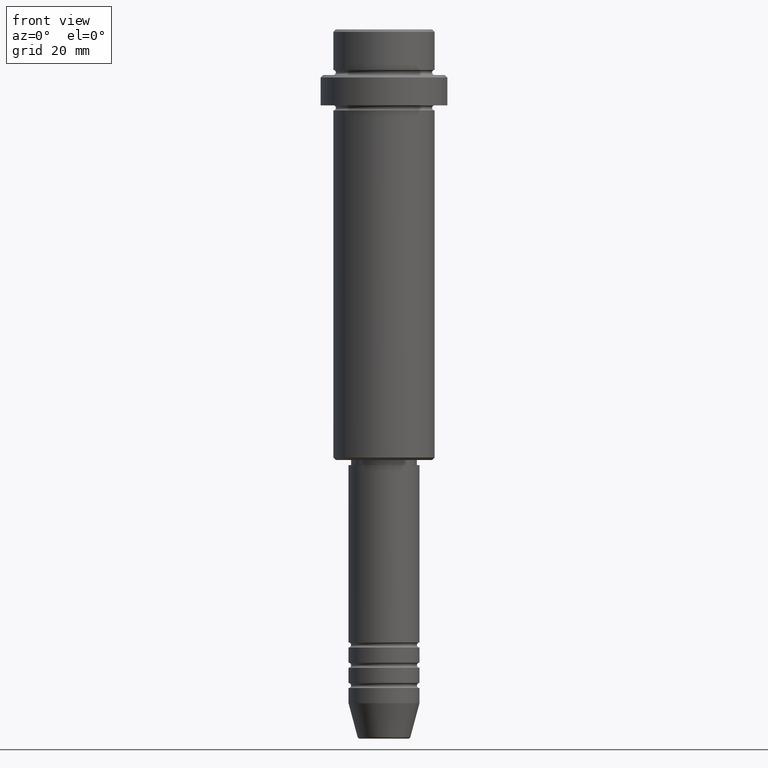
[diagram: clean part render]
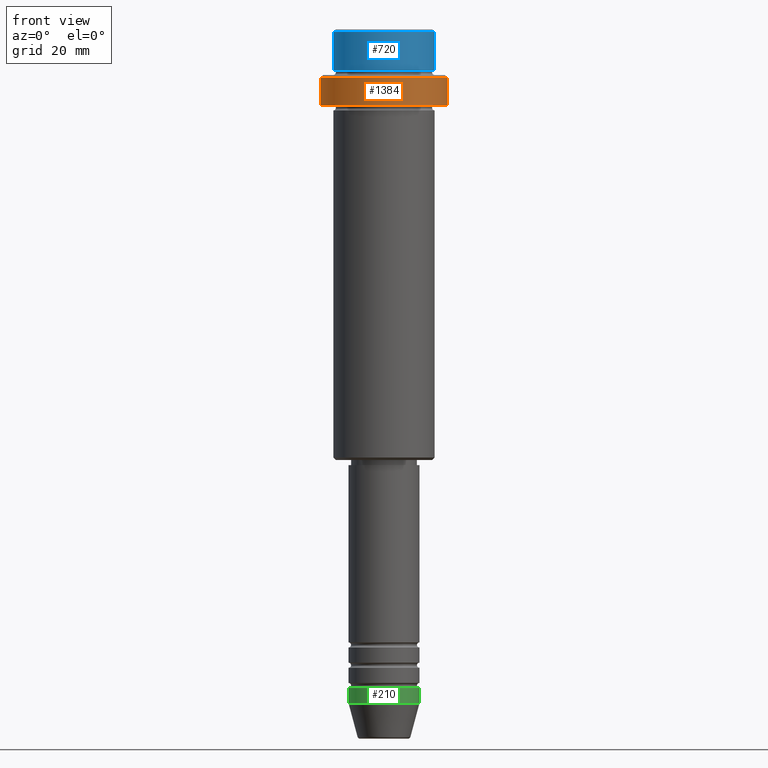
[diagram: same view with three faces highlighted in distinct colors, each labeled with its STEP entity id]
A machine part, front view with three faces highlighted in distinct colors.
Their STEP definitions:

[orange] entity #1384 — the highlighted cylindrical surface (partial cylindrical patch) has radius 12.5 mm, axis along (-0, -0, 1).
#19 = DIRECTION ( 'NONE',  ( -0.000000000000000000, -0.000000000000000000, 1.000000000000000000 ) ) ;
#30 = EDGE_CURVE ( 'NONE', #416, #1037, #693, .T. ) ;
#56 = EDGE_CURVE ( 'NONE', #314, #565, #536, .T. ) ;
#135 = DIRECTION ( 'NONE',  ( -0.000000000000000000, -0.000000000000000000, 1.000000000000000000 ) ) ;
#145 = EDGE_CURVE ( 'NONE', #314, #1037, #582, .T. ) ;
#215 = DIRECTION ( 'NONE',  ( 1.000000000000000000, 0.000000000000000000, 0.000000000000000000 ) ) ;
#235 = LINE ( 'NONE', #1333, #445 ) ;
#314 = VERTEX_POINT ( 'NONE', #1162 ) ;
#416 = VERTEX_POINT ( 'NONE', #1329 ) ;
#444 = ORIENTED_EDGE ( 'NONE', *, *, #145, .F. ) ;
#445 = VECTOR ( 'NONE', #661, 1000.000000000000000 ) ;
#536 = CIRCLE ( 'NONE', #1342, 12.50000000000000000 ) ;
#565 = VERTEX_POINT ( 'NONE', #1387 ) ;
#582 = LINE ( 'NONE', #907, #1036 ) ;
#612 = CARTESIAN_POINT ( 'NONE',  ( -12.50000000000000000, 1.530808498934191521E-15, -9.500000000000031974 ) ) ;
#661 = DIRECTION ( 'NONE',  ( -0.000000000000000000, -0.000000000000000000, 1.000000000000000000 ) ) ;
#693 = CIRCLE ( 'NONE', #879, 12.50000000000000000 ) ;
#746 = DIRECTION ( 'NONE',  ( 1.000000000000000000, 0.000000000000000000, 0.000000000000000000 ) ) ;
#749 = ORIENTED_EDGE ( 'NONE', *, *, #56, .T. ) ;
#765 = CARTESIAN_POINT ( 'NONE',  ( 0.000000000000000000, 0.000000000000000000, 0.000000000000000000 ) ) ;
#861 = CARTESIAN_POINT ( 'NONE',  ( 0.000000000000000000, 0.000000000000000000, -9.500000000000031974 ) ) ;
#863 = EDGE_LOOP ( 'NONE', ( #444, #749, #931, #1094 ) ) ;
#879 = AXIS2_PLACEMENT_3D ( 'NONE', #861, #1304, #215 ) ;
#907 = CARTESIAN_POINT ( 'NONE',  ( -12.50000000000000000, 1.530808498934191521E-15, 0.000000000000000000 ) ) ;
#931 = ORIENTED_EDGE ( 'NONE', *, *, #932, .T. ) ;
#932 = EDGE_CURVE ( 'NONE', #565, #416, #235, .T. ) ;
#964 = CARTESIAN_POINT ( 'NONE',  ( 0.000000000000000000, 0.000000000000000000, -15.00000000000000000 ) ) ;
#998 = AXIS2_PLACEMENT_3D ( 'NONE', #765, #19, #1330 ) ;
#1036 = VECTOR ( 'NONE', #135, 1000.000000000000000 ) ;
#1037 = VERTEX_POINT ( 'NONE', #612 ) ;
#1094 = ORIENTED_EDGE ( 'NONE', *, *, #30, .T. ) ;
#1097 = DIRECTION ( 'NONE',  ( -0.000000000000000000, -0.000000000000000000, 1.000000000000000000 ) ) ;
#1118 = CYLINDRICAL_SURFACE ( 'NONE', #998, 12.50000000000000000 ) ;
#1162 = CARTESIAN_POINT ( 'NONE',  ( -12.50000000000000000, 1.530808498934191521E-15, -15.00000000000000000 ) ) ;
#1231 = FACE_OUTER_BOUND ( 'NONE', #863, .T. ) ;
#1304 = DIRECTION ( 'NONE',  ( 0.000000000000000000, 0.000000000000000000, -1.000000000000000000 ) ) ;
#1329 = CARTESIAN_POINT ( 'NONE',  ( 12.50000000000000000, 0.000000000000000000, -9.500000000000031974 ) ) ;
#1330 = DIRECTION ( 'NONE',  ( 1.000000000000000000, 0.000000000000000000, 0.000000000000000000 ) ) ;
#1333 = CARTESIAN_POINT ( 'NONE',  ( 12.50000000000000000, 0.000000000000000000, 0.000000000000000000 ) ) ;
#1342 = AXIS2_PLACEMENT_3D ( 'NONE', #964, #1097, #746 ) ;
#1384 = ADVANCED_FACE ( 'NONE', ( #1231 ), #1118, .T. ) ;
#1387 = CARTESIAN_POINT ( 'NONE',  ( 12.50000000000000000, 0.000000000000000000, -15.00000000000000000 ) ) ;

[blue] entity #720 — the highlighted cylindrical surface (partial cylindrical patch) has radius 10 mm, axis along (-0, -0, 1).
#2 = FACE_OUTER_BOUND ( 'NONE', #647, .T. ) ;
#21 = DIRECTION ( 'NONE',  ( 1.000000000000000000, 0.000000000000000000, 0.000000000000000000 ) ) ;
#104 = EDGE_CURVE ( 'NONE', #305, #902, #628, .T. ) ;
#124 = DIRECTION ( 'NONE',  ( 0.000000000000000000, 0.000000000000000000, -1.000000000000000000 ) ) ;
#147 = CARTESIAN_POINT ( 'NONE',  ( 9.999999999999998224, 0.000000000000000000, 0.000000000000000000 ) ) ;
#154 = EDGE_CURVE ( 'NONE', #196, #305, #475, .T. ) ;
#196 = VERTEX_POINT ( 'NONE', #800 ) ;
#263 = DIRECTION ( 'NONE',  ( -0.000000000000000000, -0.000000000000000000, 1.000000000000000000 ) ) ;
#305 = VERTEX_POINT ( 'NONE', #813 ) ;
#442 = CARTESIAN_POINT ( 'NONE',  ( -9.999999999999998224, 1.224646799147353059E-15, 0.000000000000000000 ) ) ;
#475 = LINE ( 'NONE', #147, #808 ) ;
#508 = VERTEX_POINT ( 'NONE', #895 ) ;
#528 = LINE ( 'NONE', #442, #758 ) ;
#533 = CARTESIAN_POINT ( 'NONE',  ( 0.000000000000000000, 0.000000000000000000, -0.4999999999999970024 ) ) ;
#628 = CIRCLE ( 'NONE', #1415, 9.999999999999998224 ) ;
#635 = DIRECTION ( 'NONE',  ( 1.000000000000000000, 0.000000000000000000, 0.000000000000000000 ) ) ;
#647 = EDGE_LOOP ( 'NONE', ( #1352, #1346, #1028, #938 ) ) ;
#671 = AXIS2_PLACEMENT_3D ( 'NONE', #1105, #263, #772 ) ;
#695 = EDGE_CURVE ( 'NONE', #508, #902, #528, .T. ) ;
#720 = ADVANCED_FACE ( 'NONE', ( #2 ), #731, .T. ) ;
#731 = CYLINDRICAL_SURFACE ( 'NONE', #1041, 9.999999999999998224 ) ;
#758 = VECTOR ( 'NONE', #1305, 1000.000000000000000 ) ;
#772 = DIRECTION ( 'NONE',  ( 1.000000000000000000, 0.000000000000000000, 0.000000000000000000 ) ) ;
#800 = CARTESIAN_POINT ( 'NONE',  ( 9.999999999999998224, 0.000000000000000000, -7.999999999999998224 ) ) ;
#805 = CIRCLE ( 'NONE', #671, 9.999999999999998224 ) ;
#808 = VECTOR ( 'NONE', #898, 1000.000000000000000 ) ;
#813 = CARTESIAN_POINT ( 'NONE',  ( 9.999999999999998224, 0.000000000000000000, -0.4999999999999970024 ) ) ;
#869 = CARTESIAN_POINT ( 'NONE',  ( 0.000000000000000000, 0.000000000000000000, 0.000000000000000000 ) ) ;
#895 = CARTESIAN_POINT ( 'NONE',  ( -9.999999999999998224, 1.224646799147353059E-15, -7.999999999999998224 ) ) ;
#898 = DIRECTION ( 'NONE',  ( -0.000000000000000000, -0.000000000000000000, 1.000000000000000000 ) ) ;
#902 = VERTEX_POINT ( 'NONE', #1003 ) ;
#938 = ORIENTED_EDGE ( 'NONE', *, *, #104, .T. ) ;
#939 = EDGE_CURVE ( 'NONE', #508, #196, #805, .T. ) ;
#1003 = CARTESIAN_POINT ( 'NONE',  ( -9.999999999999998224, 1.224646799147353059E-15, -0.4999999999999970024 ) ) ;
#1028 = ORIENTED_EDGE ( 'NONE', *, *, #154, .T. ) ;
#1041 = AXIS2_PLACEMENT_3D ( 'NONE', #869, #1408, #635 ) ;
#1105 = CARTESIAN_POINT ( 'NONE',  ( 0.000000000000000000, 0.000000000000000000, -7.999999999999998224 ) ) ;
#1305 = DIRECTION ( 'NONE',  ( -0.000000000000000000, -0.000000000000000000, 1.000000000000000000 ) ) ;
#1346 = ORIENTED_EDGE ( 'NONE', *, *, #939, .T. ) ;
#1352 = ORIENTED_EDGE ( 'NONE', *, *, #695, .F. ) ;
#1408 = DIRECTION ( 'NONE',  ( -0.000000000000000000, -0.000000000000000000, 1.000000000000000000 ) ) ;
#1415 = AXIS2_PLACEMENT_3D ( 'NONE', #533, #124, #21 ) ;

[green] entity #210 — the highlighted cylindrical surface (edge-blend (fillet) strip) has radius 7 mm, axis along (-0, -0, 1).
#17 = VECTOR ( 'NONE', #984, 1000.000000000000000 ) ;
#23 = ORIENTED_EDGE ( 'NONE', *, *, #1214, .F. ) ;
#74 = EDGE_CURVE ( 'NONE', #709, #1261, #1069, .T. ) ;
#92 = CIRCLE ( 'NONE', #859, 7.000000000000000000 ) ;
#119 = CARTESIAN_POINT ( 'NONE',  ( 0.000000000000000000, 0.000000000000000000, -133.0000000000000000 ) ) ;
#132 = AXIS2_PLACEMENT_3D ( 'NONE', #157, #681, #777 ) ;
#157 = CARTESIAN_POINT ( 'NONE',  ( 0.000000000000000000, 0.000000000000000000, 0.000000000000000000 ) ) ;
#210 = ADVANCED_FACE ( 'NONE', ( #262 ), #686, .T. ) ;
#211 = DIRECTION ( 'NONE',  ( -0.000000000000000000, -0.000000000000000000, 1.000000000000000000 ) ) ;
#251 = EDGE_CURVE ( 'NONE', #1261, #392, #458, .T. ) ;
#262 = FACE_OUTER_BOUND ( 'NONE', #495, .T. ) ;
#317 = DIRECTION ( 'NONE',  ( -0.000000000000000000, -0.000000000000000000, 1.000000000000000000 ) ) ;
#345 = CARTESIAN_POINT ( 'NONE',  ( 7.000000000000000000, 0.000000000000000000, 0.000000000000000000 ) ) ;
#392 = VERTEX_POINT ( 'NONE', #933 ) ;
#434 = DIRECTION ( 'NONE',  ( 1.000000000000000000, 0.000000000000000000, 0.000000000000000000 ) ) ;
#447 = AXIS2_PLACEMENT_3D ( 'NONE', #119, #211, #1195 ) ;
#458 = LINE ( 'NONE', #345, #665 ) ;
#495 = EDGE_LOOP ( 'NONE', ( #1398, #982, #498, #23 ) ) ;
#498 = ORIENTED_EDGE ( 'NONE', *, *, #251, .T. ) ;
#562 = LINE ( 'NONE', #663, #17 ) ;
#663 = CARTESIAN_POINT ( 'NONE',  ( -7.000000000000000000, 8.572527594031473190E-16, 0.000000000000000000 ) ) ;
#665 = VECTOR ( 'NONE', #1010, 1000.000000000000000 ) ;
#681 = DIRECTION ( 'NONE',  ( -0.000000000000000000, -0.000000000000000000, 1.000000000000000000 ) ) ;
#686 = CYLINDRICAL_SURFACE ( 'NONE', #132, 7.000000000000000000 ) ;
#709 = VERTEX_POINT ( 'NONE', #1316 ) ;
#716 = VERTEX_POINT ( 'NONE', #965 ) ;
#777 = DIRECTION ( 'NONE',  ( 1.000000000000000000, 0.000000000000000000, 0.000000000000000000 ) ) ;
#842 = CARTESIAN_POINT ( 'NONE',  ( 7.000000000000000000, 0.000000000000000000, -133.0000000000000000 ) ) ;
#859 = AXIS2_PLACEMENT_3D ( 'NONE', #1308, #317, #434 ) ;
#933 = CARTESIAN_POINT ( 'NONE',  ( 7.000000000000000000, 0.000000000000000000, -130.0000000000000000 ) ) ;
#965 = CARTESIAN_POINT ( 'NONE',  ( -7.000000000000000000, 8.572527594031473190E-16, -130.0000000000000000 ) ) ;
#982 = ORIENTED_EDGE ( 'NONE', *, *, #74, .T. ) ;
#984 = DIRECTION ( 'NONE',  ( -0.000000000000000000, -0.000000000000000000, 1.000000000000000000 ) ) ;
#1010 = DIRECTION ( 'NONE',  ( -0.000000000000000000, -0.000000000000000000, 1.000000000000000000 ) ) ;
#1069 = CIRCLE ( 'NONE', #447, 7.000000000000000000 ) ;
#1195 = DIRECTION ( 'NONE',  ( 1.000000000000000000, 0.000000000000000000, 0.000000000000000000 ) ) ;
#1214 = EDGE_CURVE ( 'NONE', #716, #392, #92, .T. ) ;
#1261 = VERTEX_POINT ( 'NONE', #842 ) ;
#1308 = CARTESIAN_POINT ( 'NONE',  ( 0.000000000000000000, 0.000000000000000000, -130.0000000000000000 ) ) ;
#1316 = CARTESIAN_POINT ( 'NONE',  ( -7.000000000000000000, 8.572527594031473190E-16, -133.0000000000000000 ) ) ;
#1318 = EDGE_CURVE ( 'NONE', #709, #716, #562, .T. ) ;
#1398 = ORIENTED_EDGE ( 'NONE', *, *, #1318, .F. ) ;